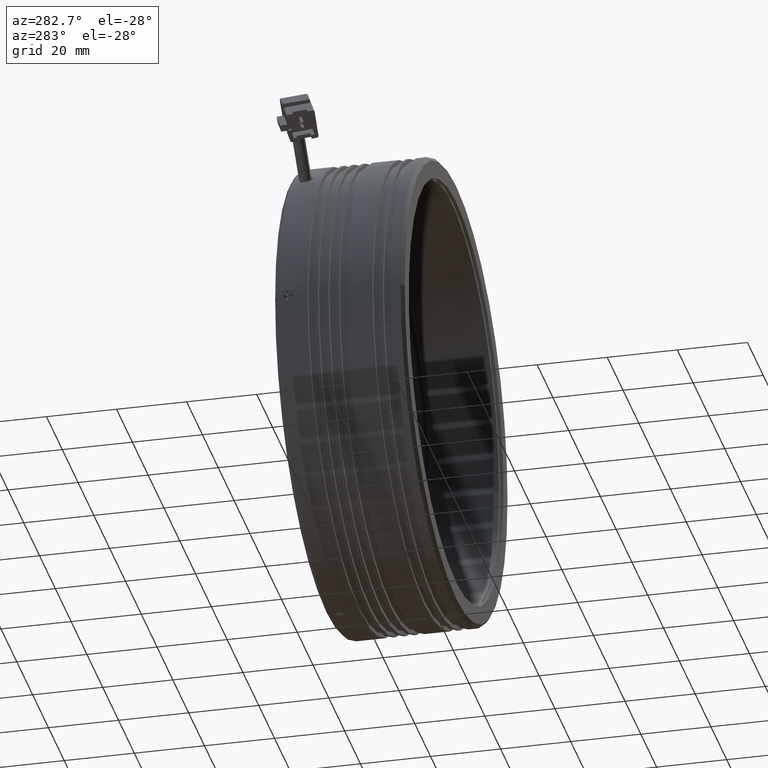
[diagram: clean part render]
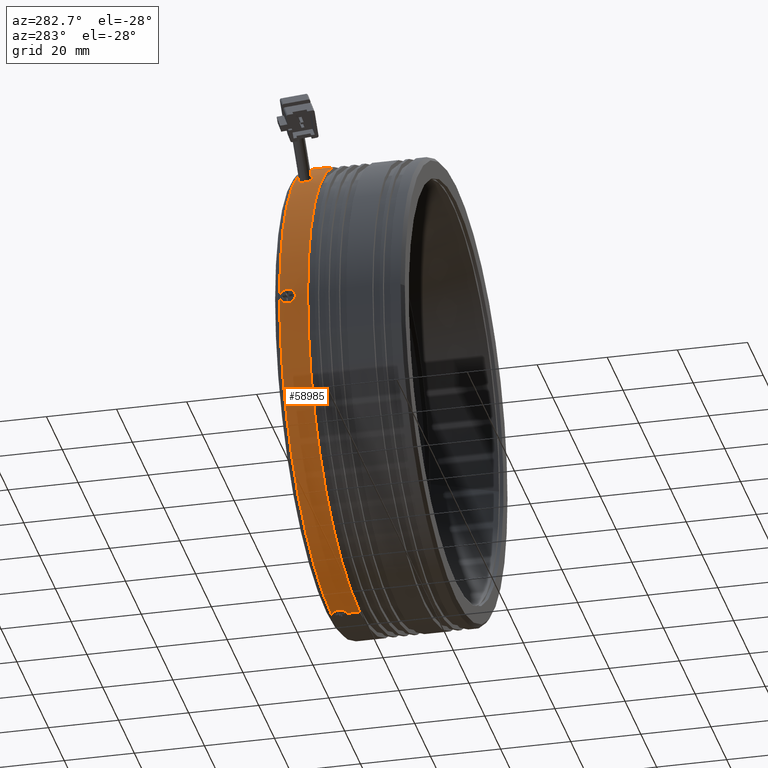
[diagram: same view with one face highlighted and labeled with its STEP entity id]
A machine part, auxiliary view. The second image highlights one B-rep face of the part: STEP entity #58985.
In plain terms, the highlighted cylindrical surface (partial cylindrical patch) has radius 66 mm, axis along (-0, -1, -0).
Its self-contained STEP definition (entity closure, byte-faithful):
#181 = CARTESIAN_POINT ( 'NONE',  ( -24.38542724558490000, 26.78040780694170700, 65.96671190348422400 ) ) ;
#494 = EDGE_CURVE ( 'NONE', #18890, #22085, #35927, .T. ) ;
#1224 = CARTESIAN_POINT ( 'NONE',  ( -24.44002960404125700, 27.06127395128546100, -65.96495424574973800 ) ) ;
#1278 = EDGE_CURVE ( 'NONE', #68371, #42366, #53796, .T. ) ;
#1327 = AXIS2_PLACEMENT_3D ( 'NONE', #20412, #59209, #26024 ) ;
#1489 = EDGE_CURVE ( 'NONE', #11049, #6685, #60421, .T. ) ;
#1499 = CARTESIAN_POINT ( 'NONE',  ( -22.28931969498006900, 25.14734950579795500, 66.00000000000000000 ) ) ;
#2438 = CARTESIAN_POINT ( 'NONE',  ( -22.57564990561859400, 25.16183581708985900, -65.99952820831369100 ) ) ;
#2552 = ORIENTED_EDGE ( 'NONE', *, *, #46664, .T. ) ;
#3301 = CARTESIAN_POINT ( 'NONE',  ( -24.17183342548521100, 28.44249861749378300, 65.97319336473914600 ) ) ;
#3541 = CARTESIAN_POINT ( 'NONE',  ( -24.45381734286523900, 27.49136734577467000, -65.96449764784330200 ) ) ;
#4324 = CARTESIAN_POINT ( 'NONE',  ( -88.25381734283720900, 27.34734950584006800, -2.164497647899826600 ) ) ;
#4530 = CARTESIAN_POINT ( 'NONE',  ( -67.97347639043448500, 28.43387052254521000, 47.63403119699833600 ) ) ;
#4670 = VERTEX_POINT ( 'NONE', #64541 ) ;
#4722 = CARTESIAN_POINT ( 'NONE',  ( -70.13820300592426800, 25.16870314386964600, 45.45871904467389900 ) ) ;
#4754 = CARTESIAN_POINT ( 'NONE',  ( -69.99370068387885600, 28.33298739444540000, 45.61033956634513900 ) ) ;
#4795 = CARTESIAN_POINT ( 'NONE',  ( -88.25381734283459400, 27.49143633079308200, -2.164497647933256300 ) ) ;
#4865 = CARTESIAN_POINT ( 'NONE',  ( -69.74960818410777100, 24.69525812384376500, 45.86495304203990000 ) ) ;
#4897 = ORIENTED_EDGE ( 'NONE', *, *, #1278, .F. ) ;
#5042 = CARTESIAN_POINT ( 'NONE',  ( -88.28884989745019100, 29.53292388990058400, -0.2857350130391520500 ) ) ;
#5257 = CARTESIAN_POINT ( 'NONE',  ( -88.28931584396932000, 25.14746888717085200, 0.1443747714345004200 ) ) ;
#5284 = CARTESIAN_POINT ( 'NONE',  ( -88.25381734282146300, 27.63552934375793800, 2.164497647937891700 ) ) ;
#5333 = CARTESIAN_POINT ( 'NONE',  ( -22.28931969498007600, -31.13173980934526600, -66.00000000000000000 ) ) ;
#5476 = CARTESIAN_POINT ( 'NONE',  ( -88.25381734283720900, 27.34734950584006800, -2.164497647899826600 ) ) ;
#5490 = CARTESIAN_POINT ( 'NONE',  ( -22.28931969498007600, 29.64734950584006500, -66.00000000000000000 ) ) ;
#5705 = CARTESIAN_POINT ( 'NONE',  ( -24.45381734286523900, 27.20333166590546300, 65.96449764784323100 ) ) ;
#6410 = CARTESIAN_POINT ( 'NONE',  ( -22.28931969498007600, -31.13173980934526600, -66.00000000000000000 ) ) ;
#6524 = CARTESIAN_POINT ( 'NONE',  ( -70.44149225105204000, 25.92466919933133700, 45.13725165316568400 ) ) ;
#6685 = VERTEX_POINT ( 'NONE', #15783 ) ;
#6729 = EDGE_CURVE ( 'NONE', #65000, #51269, #60036, .T. ) ;
#7962 = CARTESIAN_POINT ( 'NONE',  ( -22.28931969498007600, 25.14734950579749300, -66.00000000000000000 ) ) ;
#8036 = B_SPLINE_CURVE_WITH_KNOTS ( 'NONE', 3,
 ( #26862, #27102, #43757, #10559, #49329, #16169, #54902, #21730, #60473, #27339, #66063, #32896, #71564, #38441, #5257, #44014, #10788, #49586, #16412, #55150, #21966, #60719, #27574, #66300, #33136, #71800, #38680, #5476 ),
 .UNSPECIFIED., .F., .F.,
 ( 4, 2, 2, 2, 2, 2, 2, 2, 2, 2, 2, 2, 2, 4 ),
 ( 5.773909124390655600E-015, 0.0004277904695139959300, 0.0008555809390222179400, 0.001283371408530439900, 0.001711161878038662100, 0.002566742817055099300, 0.002994533286563315400, 0.003422323756071531900, 0.003850114225579748000, 0.004277904695087964500, 0.005133485634104397600, 0.005561276103612610200, 0.005989066573120822900, 0.006844647512137249900 ),
 .UNSPECIFIED. ) ;
#8862 = CARTESIAN_POINT ( 'NONE',  ( -23.92528906425680200, 28.79485401774353900, 65.97979571558524000 ) ) ;
#8864 = CARTESIAN_POINT ( 'NONE',  ( -22.85457433505821700, 29.47591926197783300, -65.99772719716288800 ) ) ;
#9567 = VECTOR ( 'NONE', #43863, 1000.000000000000000 ) ;
#9685 = CARTESIAN_POINT ( 'NONE',  ( -22.28931969498007600, -31.13173980934526600, 0.0000000000000000000 ) ) ;
#9898 = CARTESIAN_POINT ( 'NONE',  ( -70.31639401253627900, 25.52624084938347700, 45.27037527073495900 ) ) ;
#10015 = EDGE_CURVE ( 'NONE', #22085, #63151, #63780, .T. ) ;
#10093 = CARTESIAN_POINT ( 'NONE',  ( -68.44442088411035700, 28.76553130419450400, 47.17758853310795100 ) ) ;
#10320 = CARTESIAN_POINT ( 'NONE',  ( -70.20284826662758300, 28.01292509762904400, 45.39053285713633600 ) ) ;
#10360 = CARTESIAN_POINT ( 'NONE',  ( -88.25427425336333400, 27.63352232497192400, -2.150700556027720400 ) ) ;
#10438 = B_SPLINE_CURVE_WITH_KNOTS ( 'NONE', 3,
 ( #54265, #15538, #64124, #30933, #69643, #36493, #3301, #42037, #8862, #47605, #14436, #53193, #20004, #58805, #25607, #64353 ),
 .UNSPECIFIED., .F., .F.,
 ( 4, 2, 2, 2, 2, 2, 2, 4 ),
 ( 1.853985714950212600E-017, 0.0004276440678461667000, 0.0008552881356923148600, 0.001282932203538463100, 0.001710576271384611100, 0.002565864407076907500, 0.002993508474923053300, 0.003421152542769198700 ),
 .UNSPECIFIED. ) ;
#10559 = CARTESIAN_POINT ( 'NONE',  ( -88.25602796369236100, 26.78090331789429600, 2.096221114737714300 ) ) ;
#10589 = CARTESIAN_POINT ( 'NONE',  ( -88.28932349845123900, 29.54746741358428600, 0.1408321093221156000 ) ) ;
#10788 = CARTESIAN_POINT ( 'NONE',  ( -88.28885001925480900, 25.16177404081205200, -0.2853770209087590500 ) ) ;
#10882 = CARTESIAN_POINT ( 'NONE',  ( -67.98224333129729800, 24.86928121145566100, 47.62532457904339400 ) ) ;
#11027 = CARTESIAN_POINT ( 'NONE',  ( -22.85457433505812100, 25.21877974970263000, 65.99772719716288800 ) ) ;
#11049 = VERTEX_POINT ( 'NONE', #37052 ) ;
#12334 = CARTESIAN_POINT ( 'NONE',  ( -24.34432101125221900, 26.64198181876252700, -65.96802124644169400 ) ) ;
#12600 = CARTESIAN_POINT ( 'NONE',  ( -67.50932940557659400, 25.65409373107210600, 48.07446245364509700 ) ) ;
#12989 = CARTESIAN_POINT ( 'NONE',  ( -22.28931969498007600, 29.54734950588264300, -66.00000000000000000 ) ) ;
#13529 = VERTEX_POINT ( 'NONE', #45941 ) ;
#14203 = CARTESIAN_POINT ( 'NONE',  ( -22.28931969498007600, 29.54734950588264300, -66.00000000000000000 ) ) ;
#14436 = CARTESIAN_POINT ( 'NONE',  ( -23.38639085263134700, 29.26550850805486400, 65.99139912018444000 ) ) ;
#14437 = CARTESIAN_POINT ( 'NONE',  ( -23.25536375693797800, 29.32131822484975500, -65.99305980575813600 ) ) ;
#15538 = CARTESIAN_POINT ( 'NONE',  ( -24.45381734286524300, 27.49138702031625700, 65.96449764784326000 ) ) ;
#15700 = CARTESIAN_POINT ( 'NONE',  ( -68.75109682668563900, 28.86496066203629600, 46.87562307195857900 ) ) ;
#15783 = CARTESIAN_POINT ( 'NONE',  ( -67.34178896881005000, 26.64734950584007600, 48.23147325482195000 ) ) ;
#15921 = CARTESIAN_POINT ( 'NONE',  ( -70.36385092065185600, 27.64043503249668300, 45.21993659400421000 ) ) ;
#15962 = CARTESIAN_POINT ( 'NONE',  ( -88.25734329428033200, 28.05295132197749900, -2.054926700418090700 ) ) ;
#16169 = CARTESIAN_POINT ( 'NONE',  ( -88.26058757039608300, 26.37781390853527700, 1.947992877819915800 ) ) ;
#16202 = CARTESIAN_POINT ( 'NONE',  ( -88.28705501371163700, 29.47617809778004300, 0.5642480550062098900 ) ) ;
#16299 = EDGE_LOOP ( 'NONE', ( #2552, #35483 ) ) ;
#16332 = EDGE_CURVE ( 'NONE', #27838, #65000, #21109, .T. ) ;
#16412 = CARTESIAN_POINT ( 'NONE',  ( -88.28573833429042800, 25.26056629372449800, -0.7001711481441236200 ) ) ;
#16638 = CARTESIAN_POINT ( 'NONE',  ( -23.25536375693788200, 25.37338078683062300, 65.99305980575812200 ) ) ;
#17564 = DIRECTION ( 'NONE',  ( -0.0000000000000000000, -1.000000000000000000, -0.0000000000000000000 ) ) ;
#17577 = VECTOR ( 'NONE', #43846, 1000.000000000000000 ) ;
#17657 = CARTESIAN_POINT ( 'NONE',  ( -24.45381734286529300, 27.34734950584006800, -65.96449764784310300 ) ) ;
#17893 = CARTESIAN_POINT ( 'NONE',  ( -24.17183342548522900, 26.25220039418626100, -65.97319336473914600 ) ) ;
#18567 = CARTESIAN_POINT ( 'NONE',  ( -67.34178896874465200, 26.49938549351031000, 48.23147325488303500 ) ) ;
#18890 = VERTEX_POINT ( 'NONE', #5490 ) ;
#19396 = VECTOR ( 'NONE', #17564, 1000.000000000000000 ) ;
#19785 = ORIENTED_EDGE ( 'NONE', *, *, #10015, .F. ) ;
#20004 = CARTESIAN_POINT ( 'NONE',  ( -22.85641946001757300, 29.47546381964280100, 65.99771288890251200 ) ) ;
#20005 = CARTESIAN_POINT ( 'NONE',  ( -23.61631120598268300, 29.09134673988268500, -65.98676426861625500 ) ) ;
#20412 = CARTESIAN_POINT ( 'NONE',  ( -22.28931969498007600, 21.64734950584006500, 0.0000000000000000000 ) ) ;
#20702 = EDGE_CURVE ( 'NONE', #58259, #27838, #63804, .T. ) ;
#21005 = CARTESIAN_POINT ( 'NONE',  ( -67.35252301912279900, 26.94090676477135200, 48.22145307840580800 ) ) ;
#21101 = CARTESIAN_POINT ( 'NONE',  ( -67.39528136125112200, 26.06380735029282300, 48.18145980279057700 ) ) ;
#21109 = B_SPLINE_CURVE_WITH_KNOTS ( 'NONE', 3,
 ( #28622, #45288, #1224, #45513, #12334, #51116, #17893, #56685, #24494, #63228, #30079, #68739, #35640, #2438, #41164, #7962 ),
 .UNSPECIFIED., .F., .F.,
 ( 4, 2, 2, 2, 2, 2, 2, 4 ),
 ( -1.084202172485504400E-018, 0.0004276440678461798700, 0.0008552881356923608300, 0.001282932203538541800, 0.001710576271384722700, 0.002565864407077077100, 0.002993508474923249800, 0.003421152542769422500 ),
 .UNSPECIFIED. ) ;
#21236 = CARTESIAN_POINT ( 'NONE',  ( -69.06096751643529800, 28.87922889696149700, 46.56645094169055500 ) ) ;
#21473 = CARTESIAN_POINT ( 'NONE',  ( -70.47083535832099700, 27.23058219496684600, 45.10590198048470300 ) ) ;
#21502 = EDGE_CURVE ( 'NONE', #68371, #4670, #57305, .T. ) ;
#21510 = CARTESIAN_POINT ( 'NONE',  ( -88.26251848733565500, 28.44283939060396400, -1.882325691059704200 ) ) ;
#21730 = CARTESIAN_POINT ( 'NONE',  ( -88.26679166794505700, 26.01223215630083300, 1.726065166647385900 ) ) ;
#21765 = CARTESIAN_POINT ( 'NONE',  ( -88.28073063429070500, 29.26598030569915600, 1.097147960056087200 ) ) ;
#21966 = CARTESIAN_POINT ( 'NONE',  ( -88.27610363777479600, 25.59247369319060200, -1.335815876571168300 ) ) ;
#22085 = VERTEX_POINT ( 'NONE', #50967 ) ;
#22208 = CARTESIAN_POINT ( 'NONE',  ( -23.61631120598262300, 25.60335227179764000, 65.98676426861627000 ) ) ;
#22782 = EDGE_LOOP ( 'NONE', ( #19785, #27271, #56970, #68791, #29577, #36347, #36948, #4897, #53152, #61185 ) ) ;
#22900 = EDGE_CURVE ( 'NONE', #43604, #13529, #8036, .T. ) ;
#23190 = FACE_BOUND ( 'NONE', #45126, .T. ) ;
#23289 = CARTESIAN_POINT ( 'NONE',  ( -68.44661935014772800, 24.52805613528945700, 47.17544087221454400 ) ) ;
#23524 = DIRECTION ( 'NONE',  ( 0.0000000000000000000, 0.0000000000000000000, -1.000000000000000000 ) ) ;
#23764 = ORIENTED_EDGE ( 'NONE', *, *, #57987, .F. ) ;
#24494 = CARTESIAN_POINT ( 'NONE',  ( -23.92528906425682700, 25.89984499393645100, -65.97979571558524000 ) ) ;
#25373 = CARTESIAN_POINT ( 'NONE',  ( -22.43340111698816100, 29.54734950588062900, -66.00000000000478900 ) ) ;
#25607 = CARTESIAN_POINT ( 'NONE',  ( -22.43342340278014300, 29.54734950588213800, 65.99999999999998600 ) ) ;
#25608 = CARTESIAN_POINT ( 'NONE',  ( -24.02429034579831300, 28.69346955461184500, -65.97749072141539300 ) ) ;
#26024 = DIRECTION ( 'NONE',  ( 0.0000000000000000000, 0.0000000000000000000, -1.000000000000000000 ) ) ;
#26605 = CARTESIAN_POINT ( 'NONE',  ( -67.42653904084228600, 27.36994100123185400, 48.15220287207718300 ) ) ;
#26855 = CARTESIAN_POINT ( 'NONE',  ( -69.36703820646724200, 28.80837054823262400, 46.25698852923672900 ) ) ;
#26862 = CARTESIAN_POINT ( 'NONE',  ( -88.25381734283648400, 27.34734950584006800, 2.164497647925870600 ) ) ;
#26905 = CARTESIAN_POINT ( 'NONE',  ( -67.67997519357646800, 25.28155460021508500, 47.91341242291747400 ) ) ;
#27087 = CARTESIAN_POINT ( 'NONE',  ( -22.43340111698813300, 25.14734950579990200, 66.00000000000474600 ) ) ;
#27095 = CARTESIAN_POINT ( 'NONE',  ( -70.52079253400634700, 26.79532584545785300, 45.05246971896512800 ) ) ;
#27102 = CARTESIAN_POINT ( 'NONE',  ( -88.25381734282319700, 27.20326268089025800, 2.164497647885214300 ) ) ;
#27132 = CARTESIAN_POINT ( 'NONE',  ( -88.26912410445122200, 28.79526386507846100, -1.635622366604520900 ) ) ;
#27271 = ORIENTED_EDGE ( 'NONE', *, *, #494, .F. ) ;
#27339 = CARTESIAN_POINT ( 'NONE',  ( -88.27605531930747400, 25.59453282736273400, 1.337954931203309900 ) ) ;
#27368 = CARTESIAN_POINT ( 'NONE',  ( -88.26911706912288500, 28.79498745218967700, 1.635956374526133000 ) ) ;
#27574 = CARTESIAN_POINT ( 'NONE',  ( -88.26682360522028100, 26.01065126105896400, -1.724836815850554300 ) ) ;
#27820 = CARTESIAN_POINT ( 'NONE',  ( -24.02429034579826400, 26.00122945706839400, 65.97749072141540700 ) ) ;
#27838 = VERTEX_POINT ( 'NONE', #17657 ) ;
#28622 = CARTESIAN_POINT ( 'NONE',  ( -24.45381734286529300, 27.34734950584006800, -65.96449764784310300 ) ) ;
#29577 = ORIENTED_EDGE ( 'NONE', *, *, #16332, .T. ) ;
#30079 = CARTESIAN_POINT ( 'NONE',  ( -23.38639085263138300, 25.42919050362505800, -65.99139912018442500 ) ) ;
#30933 = CARTESIAN_POINT ( 'NONE',  ( -24.38558738018455700, 27.91360520520103000, 65.96670678113889600 ) ) ;
#31034 = CIRCLE ( 'NONE', #1327, 66.00000000000000000 ) ;
#31170 = CARTESIAN_POINT ( 'NONE',  ( -24.34417462436834300, 28.05312645732174200, -65.96802577318425200 ) ) ;
#31981 = DIRECTION ( 'NONE',  ( 0.0000000000000000000, 0.0000000000000000000, -1.000000000000000000 ) ) ;
#32158 = CARTESIAN_POINT ( 'NONE',  ( -67.55970271366612700, 27.76846879343441500, 48.02706697037670800 ) ) ;
#32357 = CARTESIAN_POINT ( 'NONE',  ( -69.36742806052780000, 24.48643176932049700, 46.25659376357631900 ) ) ;
#32398 = CARTESIAN_POINT ( 'NONE',  ( -69.65482714730838200, 28.65527372967538300, 45.96223691192382400 ) ) ;
#32666 = CARTESIAN_POINT ( 'NONE',  ( -88.28073045624910300, 29.26591835867551700, -1.096403537295060200 ) ) ;
#32896 = CARTESIAN_POINT ( 'NONE',  ( -88.28569288130012200, 25.26206494835996000, 0.7041484195549335700 ) ) ;
#32932 = CARTESIAN_POINT ( 'NONE',  ( -88.26256232578583600, 28.44550407077263500, 1.880782029877543500 ) ) ;
#33136 = CARTESIAN_POINT ( 'NONE',  ( -88.26058629423697300, 26.37790222567965200, -1.948036007039853700 ) ) ;
#33359 = CARTESIAN_POINT ( 'NONE',  ( -24.34417462436833900, 26.64157255435844400, 65.96802577318426600 ) ) ;
#35483 = ORIENTED_EDGE ( 'NONE', *, *, #22900, .T. ) ;
#35640 = CARTESIAN_POINT ( 'NONE',  ( -22.85641946001761900, 25.21923519203699700, -65.99771288890252700 ) ) ;
#35927 = CIRCLE ( 'NONE', #54580, 66.00000000000000000 ) ;
#36347 = ORIENTED_EDGE ( 'NONE', *, *, #6729, .T. ) ;
#36493 = CARTESIAN_POINT ( 'NONE',  ( -24.23745749644323800, 28.31657726272878900, 65.97126356746072400 ) ) ;
#36724 = CARTESIAN_POINT ( 'NONE',  ( -24.44003305394483800, 27.63354502327083400, -65.96495416710725100 ) ) ;
#36948 = ORIENTED_EDGE ( 'NONE', *, *, #68006, .T. ) ;
#37052 = CARTESIAN_POINT ( 'NONE',  ( -70.52079294978172200, 26.64736093928219400, 45.05246927385169200 ) ) ;
#37715 = CARTESIAN_POINT ( 'NONE',  ( -67.74804597670497200, 28.12600829404766500, 47.84887647694643000 ) ) ;
#37832 = CARTESIAN_POINT ( 'NONE',  ( -68.85584792937295600, 24.41546094995341000, 46.77157095618525800 ) ) ;
#37972 = CARTESIAN_POINT ( 'NONE',  ( -69.91478015288559800, 28.42527641730970000, 45.69278202869858100 ) ) ;
#38023 = CARTESIAN_POINT ( 'NONE',  ( -67.35278264568788100, 26.35097610540663700, 48.22121061791396800 ) ) ;
#38241 = CARTESIAN_POINT ( 'NONE',  ( -88.28704183644254000, 29.47575872464158000, -0.5659536931182964600 ) ) ;
#38441 = CARTESIAN_POINT ( 'NONE',  ( -88.28884989745020600, 25.16177512183548300, 0.2857350130300645400 ) ) ;
#38475 = CARTESIAN_POINT ( 'NONE',  ( -88.25572007816134600, 27.92086570355792200, 2.108427012165596800 ) ) ;
#38680 = CARTESIAN_POINT ( 'NONE',  ( -88.25381734282319700, 27.05916966793022400, -2.164497647885674300 ) ) ;
#38906 = CARTESIAN_POINT ( 'NONE',  ( -24.44003305394483800, 27.06115398840930900, 65.96495416710726500 ) ) ;
#40868 = CARTESIAN_POINT ( 'NONE',  ( -67.74765292885233200, 25.16914102196216200, 47.84925254860950600 ) ) ;
#41164 = CARTESIAN_POINT ( 'NONE',  ( -22.43342340278019300, 25.14734950579756000, -66.00000000000000000 ) ) ;
#41393 = ORIENTED_EDGE ( 'NONE', *, *, #1489, .F. ) ;
#41810 = CARTESIAN_POINT ( 'NONE',  ( -70.51077520137987200, 26.35379775784994300, 45.06320073236556600 ) ) ;
#41941 = CARTESIAN_POINT ( 'NONE',  ( -22.28931969498007600, 25.14734950579749300, -66.00000000000000000 ) ) ;
#42037 = CARTESIAN_POINT ( 'NONE',  ( -24.01567803239809600, 28.68206952527580000, 65.97746424028152000 ) ) ;
#42039 = CARTESIAN_POINT ( 'NONE',  ( -22.57523806375764900, 29.53286852258850500, -65.99952847320700800 ) ) ;
#42278 = CARTESIAN_POINT ( 'NONE',  ( -24.45381734286529300, 27.34734950584006800, -65.96449764784310300 ) ) ;
#42366 = VERTEX_POINT ( 'NONE', #52865 ) ;
#42866 = DIRECTION ( 'NONE',  ( -0.0000000000000000000, -1.000000000000000000, -0.0000000000000000000 ) ) ;
#43285 = CARTESIAN_POINT ( 'NONE',  ( -68.15433932046454400, 28.59949306333373200, 47.46022415737809300 ) ) ;
#43523 = CARTESIAN_POINT ( 'NONE',  ( -70.13868684949824200, 28.12538020591687300, 45.45821272117316200 ) ) ;
#43604 = VERTEX_POINT ( 'NONE', #57324 ) ;
#43757 = CARTESIAN_POINT ( 'NONE',  ( -88.25427425336504000, 27.06117668671458900, 2.150700555974696600 ) ) ;
#43786 = CARTESIAN_POINT ( 'NONE',  ( -88.28931584396934800, 29.54723012456569000, -0.1443747714400845900 ) ) ;
#43846 = DIRECTION ( 'NONE',  ( -0.0000000000000000000, -1.000000000000000000, -0.0000000000000000000 ) ) ;
#43863 = DIRECTION ( 'NONE',  ( -0.0000000000000000000, -1.000000000000000000, -0.0000000000000000000 ) ) ;
#44014 = CARTESIAN_POINT ( 'NONE',  ( -88.28932349845122500, 25.14723159815246600, -0.1408321093205923100 ) ) ;
#44045 = CARTESIAN_POINT ( 'NONE',  ( -88.25381734283648400, 27.34734950584006800, 2.164497647925870600 ) ) ;
#44249 = CARTESIAN_POINT ( 'NONE',  ( -22.57523806375754900, 25.16183048909202200, 65.99952847320699300 ) ) ;
#44495 = CARTESIAN_POINT ( 'NONE',  ( -24.45381734286529300, 27.34734950584006800, 65.96449764784310300 ) ) ;
#44685 = CARTESIAN_POINT ( 'NONE',  ( -68.25161334654316600, 24.63938305922359000, 47.36545254964040200 ) ) ;
#45028 = CARTESIAN_POINT ( 'NONE',  ( -69.16504643142465600, 24.42975392950342000, 46.46167234201710300 ) ) ;
#45126 = EDGE_LOOP ( 'NONE', ( #23764, #41393 ) ) ;
#45288 = CARTESIAN_POINT ( 'NONE',  ( -24.45381734286523200, 27.20331199136385800, -65.96449764784328800 ) ) ;
#45513 = CARTESIAN_POINT ( 'NONE',  ( -24.38558738018456000, 26.78109380647906000, -65.96670678113892400 ) ) ;
#45683 = CYLINDRICAL_SURFACE ( 'NONE', #62960, 66.00000000000000000 ) ;
#45941 = CARTESIAN_POINT ( 'NONE',  ( -88.25381734283720900, 27.34734950584006800, -2.164497647899826600 ) ) ;
#46664 = EDGE_CURVE ( 'NONE', #13529, #43604, #69804, .T. ) ;
#47186 = CARTESIAN_POINT ( 'NONE',  ( -69.92339746638579400, 24.86089004951957900, 45.68410795906461900 ) ) ;
#47605 = CARTESIAN_POINT ( 'NONE',  ( -23.62780289745762700, 29.09973355986120700, 65.98672454749494400 ) ) ;
#47606 = CARTESIAN_POINT ( 'NONE',  ( -22.99321184837801400, 29.43274830848899600, -65.99637656335686100 ) ) ;
#48210 = CARTESIAN_POINT ( 'NONE',  ( -68.75055962390649700, 24.42988604485150700, 46.87615324064084600 ) ) ;
#48593 = CARTESIAN_POINT ( 'NONE',  ( -67.34178896881005000, 26.64734950584007600, 48.23147325482195000 ) ) ;
#48834 = CARTESIAN_POINT ( 'NONE',  ( -68.54592596316908300, 28.80828386534378500, 47.07809627810318200 ) ) ;
#49039 = CARTESIAN_POINT ( 'NONE',  ( -67.42661647002344700, 25.92443239122788900, 48.15213036071235600 ) ) ;
#49078 = CARTESIAN_POINT ( 'NONE',  ( -70.31523117389272700, 27.77125252375577700, 45.27160831979027500 ) ) ;
#49111 = CARTESIAN_POINT ( 'NONE',  ( -88.25602796369069800, 27.91379569379905600, -2.096221114789633200 ) ) ;
#49329 = CARTESIAN_POINT ( 'NONE',  ( -88.25734329428198100, 26.64174768971937400, 2.054926700367071900 ) ) ;
#49366 = CARTESIAN_POINT ( 'NONE',  ( -88.28885001925480900, 29.53292497092441900, 0.2853770209138861700 ) ) ;
#49586 = CARTESIAN_POINT ( 'NONE',  ( -88.28705501371173600, 25.21852091395511400, -0.5642480549941276700 ) ) ;
#49775 = CARTESIAN_POINT ( 'NONE',  ( -67.56102106286552100, 25.52322733744164300, 48.02582380196969300 ) ) ;
#49807 = CARTESIAN_POINT ( 'NONE',  ( -22.99321184837792800, 25.26195070319144200, 65.99637656335686100 ) ) ;
#50358 = CARTESIAN_POINT ( 'NONE',  ( -70.20358277588813700, 25.28306457844269400, 45.38975807460058600 ) ) ;
#50367 = EDGE_CURVE ( 'NONE', #4670, #63151, #10438, .T. ) ;
#50637 = DIRECTION ( 'NONE',  ( 0.0000000000000000000, 1.000000000000000000, 0.0000000000000000000 ) ) ;
#50967 = CARTESIAN_POINT ( 'NONE',  ( -22.28931969498006900, 29.64734950584006500, 66.00000000000000000 ) ) ;
#51116 = CARTESIAN_POINT ( 'NONE',  ( -24.23745749644326600, 26.37812174895126900, -65.97126356746075300 ) ) ;
#51269 = VERTEX_POINT ( 'NONE', #56469 ) ;
#51402 = CARTESIAN_POINT ( 'NONE',  ( -22.28931969498007600, 29.64734950584006500, 0.0000000000000000000 ) ) ;
#52650 = FACE_OUTER_BOUND ( 'NONE', #22782, .T. ) ;
#52865 = CARTESIAN_POINT ( 'NONE',  ( -22.28931969498006900, 21.64734950584006500, 66.00000000000000000 ) ) ;
#53037 = CARTESIAN_POINT ( 'NONE',  ( -22.28931969498006900, 29.54734950588218100, 66.00000000000000000 ) ) ;
#53152 = ORIENTED_EDGE ( 'NONE', *, *, #21502, .T. ) ;
#53193 = CARTESIAN_POINT ( 'NONE',  ( -22.99434235722919300, 29.43232525276143400, 65.99636371639594800 ) ) ;
#53196 = CARTESIAN_POINT ( 'NONE',  ( -23.38000270091656700, 29.25307630873788200, -65.99109315424897200 ) ) ;
#53796 = LINE ( 'NONE', #64739, #9567 ) ;
#54186 = CARTESIAN_POINT ( 'NONE',  ( -67.34178896887544900, 26.79531879581916700, 48.23147325476088600 ) ) ;
#54265 = CARTESIAN_POINT ( 'NONE',  ( -24.45381734286529300, 27.34734950584006800, 65.96449764784310300 ) ) ;
#54423 = CARTESIAN_POINT ( 'NONE',  ( -68.85411492898099100, 28.87907843650871000, 46.77329620686009500 ) ) ;
#54580 = AXIS2_PLACEMENT_3D ( 'NONE', #51402, #50637, #23524 ) ;
#54652 = CARTESIAN_POINT ( 'NONE',  ( -22.28931969498006900, -31.13173980934526600, 66.00000000000000000 ) ) ;
#54683 = CARTESIAN_POINT ( 'NONE',  ( -70.44151509101953900, 27.36997234850397500, 45.13722739242502500 ) ) ;
#54717 = CARTESIAN_POINT ( 'NONE',  ( -88.26058757039464800, 28.31688510316824300, -1.947992877868591500 ) ) ;
#54902 = CARTESIAN_POINT ( 'NONE',  ( -88.26251848733700500, 26.25185962110277800, 1.882325691012487900 ) ) ;
#54934 = CARTESIAN_POINT ( 'NONE',  ( -88.28573833429025800, 29.43413271800963600, 0.7001711481596056800 ) ) ;
#55150 = CARTESIAN_POINT ( 'NONE',  ( -88.28073063429108900, 25.42871870603079600, -1.097147960030650400 ) ) ;
#55397 = CARTESIAN_POINT ( 'NONE',  ( -23.38000270091647800, 25.44162270294247100, 65.99109315424895800 ) ) ;
#55679 = CARTESIAN_POINT ( 'NONE',  ( -70.52079294978172200, 26.64736093928219400, 45.05246927385169200 ) ) ;
#56469 = CARTESIAN_POINT ( 'NONE',  ( -22.28931969498007600, 21.64734950584006500, -66.00000000000000000 ) ) ;
#56685 = CARTESIAN_POINT ( 'NONE',  ( -24.01567803239812100, 26.01262948640422200, -65.97746424028152000 ) ) ;
#56970 = ORIENTED_EDGE ( 'NONE', *, *, #69354, .T. ) ;
#57143 = CARTESIAN_POINT ( 'NONE',  ( -70.36394241309797300, 25.65456054018194000, 45.21983922109367200 ) ) ;
#57305 = B_SPLINE_CURVE_WITH_KNOTS ( 'NONE', 3,
 ( #71788, #27087, #44249, #11027, #49807, #16638, #55397, #22208, #60944, #27820, #66533, #33359, #181, #38906, #5705, #44495 ),
 .UNSPECIFIED., .F., .F.,
 ( 4, 2, 2, 2, 2, 2, 2, 4 ),
 ( -0.003420685236676856600, -0.002993099582092246300, -0.002565513927507636000, -0.002137928272923025600, -0.001710342618338415500, -0.0008551713091692037500, -0.0004275856545845921200, 1.864827736675067600E-017 ),
 .UNSPECIFIED. ) ;
#57324 = CARTESIAN_POINT ( 'NONE',  ( -88.25381734283648400, 27.34734950584006800, 2.164497647925870600 ) ) ;
#57987 = EDGE_CURVE ( 'NONE', #6685, #11049, #60175, .T. ) ;
#58259 = VERTEX_POINT ( 'NONE', #12989 ) ;
#58805 = CARTESIAN_POINT ( 'NONE',  ( -22.57564990561856200, 29.53286319458987600, 65.99952820831367700 ) ) ;
#58806 = CARTESIAN_POINT ( 'NONE',  ( -23.72661045461190500, 28.99843162923500400, -65.98442275670595300 ) ) ;
#58985 = ADVANCED_FACE ( 'NONE', ( #52650, #67366, #23190 ), #45683, .T. ) ;
#59209 = DIRECTION ( 'NONE',  ( 0.0000000000000000000, 1.000000000000000000, 0.0000000000000000000 ) ) ;
#59767 = CARTESIAN_POINT ( 'NONE',  ( -67.39462514310551500, 27.22749656477725100, 48.18207396176743600 ) ) ;
#59874 = CARTESIAN_POINT ( 'NONE',  ( -70.52079336554230300, 26.49940131059952000, 45.05246882875413000 ) ) ;
#59998 = CARTESIAN_POINT ( 'NONE',  ( -69.16556503778991800, 28.86480570539638200, 46.46114710811025400 ) ) ;
#60036 = LINE ( 'NONE', #5333, #17577 ) ;
#60175 = B_SPLINE_CURVE_WITH_KNOTS ( 'NONE', 3,
 ( #48593, #54186, #21005, #59767, #26605, #65356, #32158, #70862, #37715, #4530, #43285, #10093, #48834, #15700, #54423, #21236, #59998, #26855, #65588, #32398, #71101, #37972, #4754, #43523, #10320, #49078, #15921, #54683, #21473, #60218, #27095, #65832 ),
 .UNSPECIFIED., .F., .F.,
 ( 4, 2, 2, 2, 2, 2, 2, 2, 2, 2, 2, 2, 2, 2, 2, 4 ),
 ( 0.007012338573886462600, 0.007450625367214303000, 0.007888912160542143500, 0.008327198953869983900, 0.008765485747197826100, 0.009642059333853508800, 0.01008034612718136700, 0.01051863292050922100, 0.01095691971383707900, 0.01139520650716493500, 0.01183349330049279100, 0.01227178009382064500, 0.01271006688714850300, 0.01314835368047635900, 0.01358664047380421500, 0.01402492726713207100 ),
 .UNSPECIFIED. ) ;
#60194 = DIRECTION ( 'NONE',  ( -0.0000000000000000000, -1.000000000000000000, -0.0000000000000000000 ) ) ;
#60218 = CARTESIAN_POINT ( 'NONE',  ( -70.51055144150456000, 26.94347596976755800, 45.06344032514429200 ) ) ;
#60259 = CARTESIAN_POINT ( 'NONE',  ( -88.26679166794390600, 28.68246685541210900, -1.726065166691038300 ) ) ;
#60421 = B_SPLINE_CURVE_WITH_KNOTS ( 'NONE', 3,
 ( #55679, #59874, #41810, #67048, #6524, #57143, #9898, #50358, #4722, #47186, #4865, #63711, #32357, #45028, #65798, #37832, #48210, #63649, #23289, #44685, #70364, #10882, #71377, #40868, #26905, #49775, #12600, #49039, #21101, #38023, #18567, #66397 ),
 .UNSPECIFIED., .F., .F.,
 ( 4, 2, 2, 2, 2, 2, 2, 2, 2, 2, 2, 2, 2, 2, 2, 4 ),
 ( 3.469446951953614200E-018, 0.0004382711608679140500, 0.0008765423217358246300, 0.001314813482603735100, 0.001753084643471645800, 0.002629626965207474200, 0.003067898126075373100, 0.003506169286943272000, 0.003944440447811170500, 0.004382711608679069900, 0.004820982769546969200, 0.005259253930414866900, 0.005697525091282766200, 0.006135796252150665600, 0.006574067413018564100, 0.007012338573886462600 ),
 .UNSPECIFIED. ) ;
#60473 = CARTESIAN_POINT ( 'NONE',  ( -88.26912410445221700, 25.89943514663739800, 1.635622366562940100 ) ) ;
#60504 = CARTESIAN_POINT ( 'NONE',  ( -88.27610363777419900, 29.10222531853519700, 1.335815876602522100 ) ) ;
#60719 = CARTESIAN_POINT ( 'NONE',  ( -88.26911706912382300, 25.89971155952849500, -1.635956374487420800 ) ) ;
#60944 = CARTESIAN_POINT ( 'NONE',  ( -23.72661045461185500, 25.69626738244529200, 65.98442275670595300 ) ) ;
#61185 = ORIENTED_EDGE ( 'NONE', *, *, #50367, .T. ) ;
#62960 = AXIS2_PLACEMENT_3D ( 'NONE', #9685, #42866, #31981 ) ;
#63151 = VERTEX_POINT ( 'NONE', #53037 ) ;
#63228 = CARTESIAN_POINT ( 'NONE',  ( -23.62780289745765900, 25.59496545181873000, -65.98672454749495800 ) ) ;
#63649 = CARTESIAN_POINT ( 'NONE',  ( -68.54644953222370400, 24.48627121489567300, 47.07757956388259400 ) ) ;
#63711 = CARTESIAN_POINT ( 'NONE',  ( -69.46697548796541400, 24.52920003399150800, 46.15503243562050500 ) ) ;
#63780 = LINE ( 'NONE', #54652, #65514 ) ;
#63804 = B_SPLINE_CURVE_WITH_KNOTS ( 'NONE', 3,
 ( #14203, #25373, #42039, #8864, #47606, #14437, #53196, #20005, #58806, #25608, #64357, #31170, #69879, #36724, #3541, #42278 ),
 .UNSPECIFIED., .F., .F.,
 ( 4, 2, 2, 2, 2, 2, 2, 4 ),
 ( -0.003420685236677047400, -0.002993099582092413300, -0.002565513927507779100, -0.002137928272923144900, -0.001710342618338510500, -0.0008551713091692570900, -0.0004275856545846289800, -8.673617379884035500E-019 ),
 .UNSPECIFIED. ) ;
#64124 = CARTESIAN_POINT ( 'NONE',  ( -24.44002960404125700, 27.63342506039465700, 65.96495424574973800 ) ) ;
#64353 = CARTESIAN_POINT ( 'NONE',  ( -22.28931969498006900, 29.54734950588218100, 66.00000000000000000 ) ) ;
#64357 = CARTESIAN_POINT ( 'NONE',  ( -24.18400247838657400, 28.44846895768558100, -65.97288526295929500 ) ) ;
#64541 = CARTESIAN_POINT ( 'NONE',  ( -24.45381734286529300, 27.34734950584006800, 65.96449764784310300 ) ) ;
#64739 = CARTESIAN_POINT ( 'NONE',  ( -22.28931969498006900, -31.13173980934526600, 66.00000000000000000 ) ) ;
#65000 = VERTEX_POINT ( 'NONE', #41941 ) ;
#65356 = CARTESIAN_POINT ( 'NONE',  ( -67.50916573313017500, 27.64014267291233700, 48.07461633748269500 ) ) ;
#65377 = LINE ( 'NONE', #6410, #19396 ) ;
#65514 = VECTOR ( 'NONE', #60194, 1000.000000000000000 ) ;
#65588 = CARTESIAN_POINT ( 'NONE',  ( -69.46489164749387200, 28.76657610863371100, 46.15716552299947800 ) ) ;
#65798 = CARTESIAN_POINT ( 'NONE',  ( -69.06273276374366800, 24.41562989583146900, 46.56467793738936900 ) ) ;
#65832 = CARTESIAN_POINT ( 'NONE',  ( -70.52079294978172200, 26.64736093928219400, 45.05246927385169200 ) ) ;
#65873 = CARTESIAN_POINT ( 'NONE',  ( -88.27605531930676400, 29.10016618436116100, -1.337954931237969700 ) ) ;
#66063 = CARTESIAN_POINT ( 'NONE',  ( -88.28073045624958600, 25.42878065305288300, 1.096403537266152500 ) ) ;
#66089 = CARTESIAN_POINT ( 'NONE',  ( -88.26682360521923000, 28.68404775065641800, 1.724836815891462000 ) ) ;
#66300 = CARTESIAN_POINT ( 'NONE',  ( -88.26256232578711500, 26.24919494093676800, -1.880782029832744700 ) ) ;
#66397 = CARTESIAN_POINT ( 'NONE',  ( -67.34178896881005000, 26.64734950584007600, 48.23147325482195000 ) ) ;
#66533 = CARTESIAN_POINT ( 'NONE',  ( -24.18400247838655700, 26.24623005399462300, 65.97288526295929500 ) ) ;
#67048 = CARTESIAN_POINT ( 'NONE',  ( -70.47138245030234300, 26.06713303857894100, 45.10531742536962700 ) ) ;
#67366 = FACE_BOUND ( 'NONE', #16299, .T. ) ;
#68006 = EDGE_CURVE ( 'NONE', #51269, #42366, #31034, .T. ) ;
#68371 = VERTEX_POINT ( 'NONE', #1499 ) ;
#68739 = CARTESIAN_POINT ( 'NONE',  ( -22.99434235722923600, 25.26237375891839300, -65.99636371639593300 ) ) ;
#68791 = ORIENTED_EDGE ( 'NONE', *, *, #20702, .T. ) ;
#69354 = EDGE_CURVE ( 'NONE', #18890, #58259, #65377, .T. ) ;
#69643 = CARTESIAN_POINT ( 'NONE',  ( -24.34432101125220900, 28.05271719291754800, 65.96802124644168000 ) ) ;
#69804 = B_SPLINE_CURVE_WITH_KNOTS ( 'NONE', 3,
 ( #4324, #4795, #10360, #49111, #15962, #54717, #21510, #60259, #27132, #65873, #32666, #71367, #38241, #5042, #43786, #10589, #49366, #16202, #54934, #21765, #60504, #27368, #66089, #32932, #71592, #38475, #5284, #44045 ),
 .UNSPECIFIED., .F., .F.,
 ( 4, 2, 2, 2, 2, 2, 2, 2, 2, 2, 2, 2, 2, 4 ),
 ( 4.813342534335422300E-015, 0.0004277904695232023200, 0.0008555809390415913300, 0.001283371408559980500, 0.001711161878078369500, 0.002566742817115147600, 0.002994533286633538700, 0.003422323756151929800, 0.003850114225670321400, 0.004277904695188712100, 0.005133485634225494300, 0.005561276103743887200, 0.005989066573262279100, 0.006844647512299073500 ),
 .UNSPECIFIED. ) ;
#69879 = CARTESIAN_POINT ( 'NONE',  ( -24.38542724558491100, 27.91429120473847500, -65.96671190348422400 ) ) ;
#70364 = CARTESIAN_POINT ( 'NONE',  ( -68.15757318483086600, 24.70859333659985100, 47.45648673768783300 ) ) ;
#70862 = CARTESIAN_POINT ( 'NONE',  ( -67.67904817492906500, 28.01157948235647400, 47.91429107220617600 ) ) ;
#71101 = CARTESIAN_POINT ( 'NONE',  ( -69.74593337603832300, 28.58599623668404600, 45.86812216863123100 ) ) ;
#71367 = CARTESIAN_POINT ( 'NONE',  ( -88.28569288129988000, 29.43263406337313300, -0.7041484195743176200 ) ) ;
#71377 = CARTESIAN_POINT ( 'NONE',  ( -67.89970352417771000, 24.96166447142530500, 47.70433855338159600 ) ) ;
#71564 = CARTESIAN_POINT ( 'NONE',  ( -88.28704183644268300, 25.21894028709275700, 0.5659536931023024800 ) ) ;
#71592 = CARTESIAN_POINT ( 'NONE',  ( -88.26058629423559400, 28.31679678602656100, 1.948036007086311600 ) ) ;
#71788 = CARTESIAN_POINT ( 'NONE',  ( -22.28931969498006900, 25.14734950579795500, 66.00000000000000000 ) ) ;
#71800 = CARTESIAN_POINT ( 'NONE',  ( -88.25572007816296600, 26.77383330813850300, -2.108427012115091400 ) ) ;